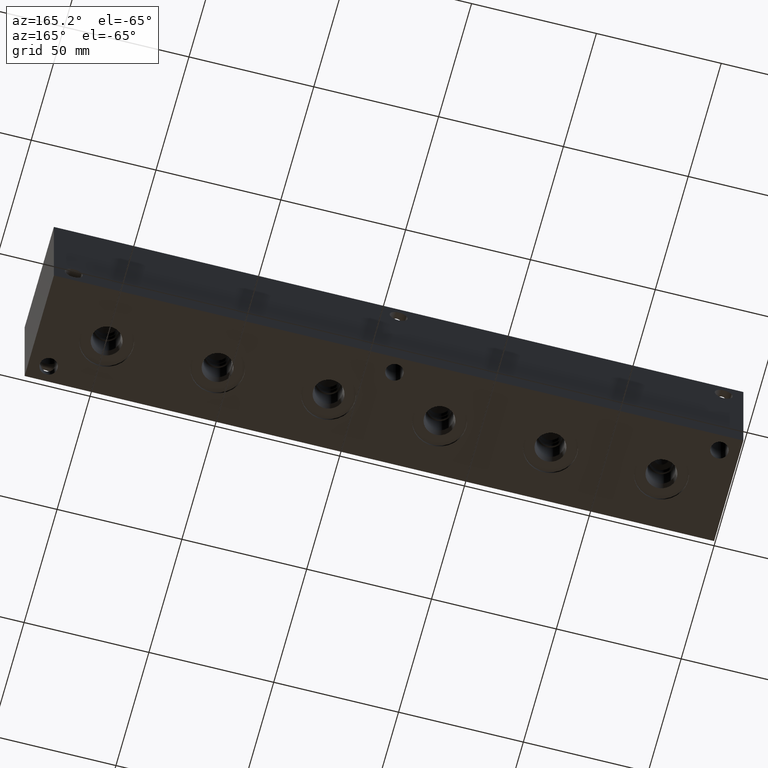
[diagram: clean part render]
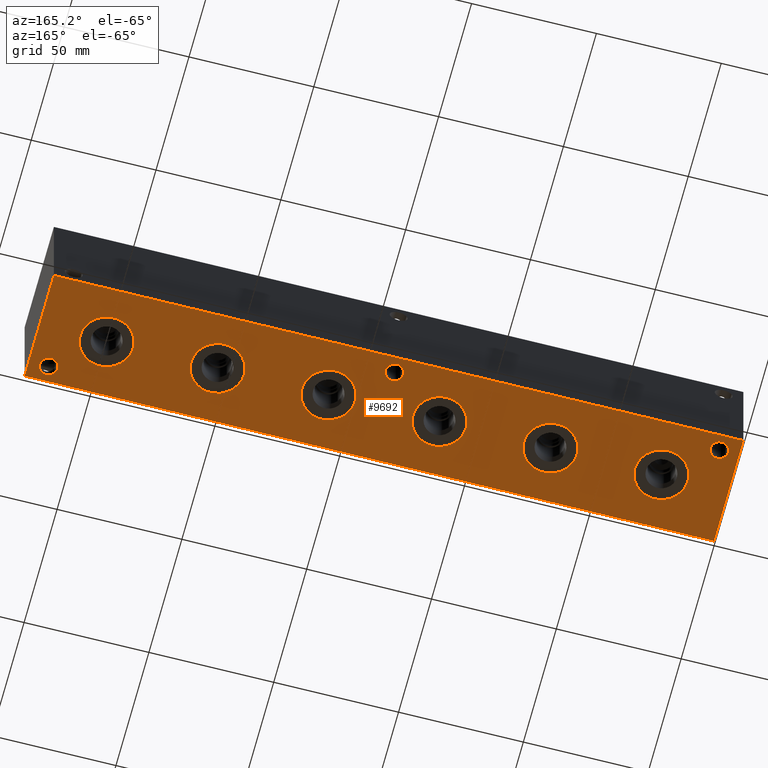
[diagram: same view with one face highlighted and labeled with its STEP entity id]
A machine part, auxiliary view. The second image highlights one B-rep face of the part: STEP entity #9692.
In plain terms, the highlighted planar face has unit normal (0, 0, 1).
Its self-contained STEP definition (entity closure, byte-faithful):
#311=CIRCLE('',#10052,10.6426);
#312=CIRCLE('',#10053,10.6426);
#318=CIRCLE('',#10065,10.6426);
#319=CIRCLE('',#10066,10.6426);
#324=CIRCLE('',#10083,10.6426);
#325=CIRCLE('',#10084,10.6426);
#331=CIRCLE('',#10096,10.6426);
#332=CIRCLE('',#10097,10.6426);
#338=CIRCLE('',#10109,10.6426);
#339=CIRCLE('',#10110,10.6426);
#345=CIRCLE('',#10122,10.6426);
#346=CIRCLE('',#10123,10.6426);
#443=CIRCLE('',#10315,3.5687);
#444=CIRCLE('',#10317,3.5687);
#445=CIRCLE('',#10319,3.5687);
#617=FACE_BOUND('',#2017,.T.);
#618=FACE_BOUND('',#2018,.T.);
#619=FACE_BOUND('',#2019,.T.);
#620=FACE_BOUND('',#2020,.T.);
#621=FACE_BOUND('',#2021,.T.);
#622=FACE_BOUND('',#2022,.T.);
#623=FACE_BOUND('',#2023,.T.);
#624=FACE_BOUND('',#2024,.T.);
#625=FACE_BOUND('',#2025,.T.);
#1421=FACE_OUTER_BOUND('',#2016,.T.);
#2016=EDGE_LOOP('',(#8617,#8618,#8619,#8620));
#2017=EDGE_LOOP('',(#8621,#8622));
#2018=EDGE_LOOP('',(#8623,#8624));
#2019=EDGE_LOOP('',(#8625,#8626));
#2020=EDGE_LOOP('',(#8627,#8628));
#2021=EDGE_LOOP('',(#8629,#8630));
#2022=EDGE_LOOP('',(#8631,#8632));
#2023=EDGE_LOOP('',(#8633));
#2024=EDGE_LOOP('',(#8634));
#2025=EDGE_LOOP('',(#8635));
#2834=LINE('',#16824,#3650);
#2837=LINE('',#16829,#3653);
#2839=LINE('',#16833,#3655);
#2841=LINE('',#16836,#3657);
#3650=VECTOR('',#12814,10.);
#3653=VECTOR('',#12819,10.);
#3655=VECTOR('',#12823,10.);
#3657=VECTOR('',#12827,10.);
#4308=VERTEX_POINT('',#16025);
#4309=VERTEX_POINT('',#16026);
#4317=VERTEX_POINT('',#16050);
#4318=VERTEX_POINT('',#16051);
#4328=VERTEX_POINT('',#16083);
#4329=VERTEX_POINT('',#16084);
#4337=VERTEX_POINT('',#16108);
#4338=VERTEX_POINT('',#16109);
#4346=VERTEX_POINT('',#16133);
#4347=VERTEX_POINT('',#16134);
#4355=VERTEX_POINT('',#16158);
#4356=VERTEX_POINT('',#16159);
#4465=VERTEX_POINT('',#16522);
#4466=VERTEX_POINT('',#16526);
#4467=VERTEX_POINT('',#16530);
#4555=VERTEX_POINT('',#16822);
#4556=VERTEX_POINT('',#16823);
#4557=VERTEX_POINT('',#16828);
#4558=VERTEX_POINT('',#16832);
#5520=EDGE_CURVE('',#4308,#4309,#311,.T.);
#5521=EDGE_CURVE('',#4309,#4308,#312,.T.);
#5532=EDGE_CURVE('',#4317,#4318,#318,.T.);
#5533=EDGE_CURVE('',#4318,#4317,#319,.T.);
#5549=EDGE_CURVE('',#4328,#4329,#324,.T.);
#5550=EDGE_CURVE('',#4329,#4328,#325,.T.);
#5561=EDGE_CURVE('',#4337,#4338,#331,.T.);
#5562=EDGE_CURVE('',#4338,#4337,#332,.T.);
#5573=EDGE_CURVE('',#4346,#4347,#338,.T.);
#5574=EDGE_CURVE('',#4347,#4346,#339,.T.);
#5585=EDGE_CURVE('',#4355,#4356,#345,.T.);
#5586=EDGE_CURVE('',#4356,#4355,#346,.T.);
#5767=EDGE_CURVE('',#4465,#4465,#443,.T.);
#5769=EDGE_CURVE('',#4466,#4466,#444,.T.);
#5771=EDGE_CURVE('',#4467,#4467,#445,.T.);
#5910=EDGE_CURVE('',#4555,#4556,#2834,.T.);
#5913=EDGE_CURVE('',#4557,#4555,#2837,.T.);
#5915=EDGE_CURVE('',#4558,#4557,#2839,.T.);
#5917=EDGE_CURVE('',#4556,#4558,#2841,.T.);
#8617=ORIENTED_EDGE('',*,*,#5917,.F.);
#8618=ORIENTED_EDGE('',*,*,#5910,.F.);
#8619=ORIENTED_EDGE('',*,*,#5913,.F.);
#8620=ORIENTED_EDGE('',*,*,#5915,.F.);
#8621=ORIENTED_EDGE('',*,*,#5520,.T.);
#8622=ORIENTED_EDGE('',*,*,#5521,.T.);
#8623=ORIENTED_EDGE('',*,*,#5532,.T.);
#8624=ORIENTED_EDGE('',*,*,#5533,.T.);
#8625=ORIENTED_EDGE('',*,*,#5549,.T.);
#8626=ORIENTED_EDGE('',*,*,#5550,.T.);
#8627=ORIENTED_EDGE('',*,*,#5561,.T.);
#8628=ORIENTED_EDGE('',*,*,#5562,.T.);
#8629=ORIENTED_EDGE('',*,*,#5573,.T.);
#8630=ORIENTED_EDGE('',*,*,#5574,.T.);
#8631=ORIENTED_EDGE('',*,*,#5585,.T.);
#8632=ORIENTED_EDGE('',*,*,#5586,.T.);
#8633=ORIENTED_EDGE('',*,*,#5767,.T.);
#8634=ORIENTED_EDGE('',*,*,#5769,.T.);
#8635=ORIENTED_EDGE('',*,*,#5771,.T.);
#8885=PLANE('',#10475);
#9692=ADVANCED_FACE('',(#1421,#617,#618,#619,#620,#621,#622,#623,#624,#625),
#8885,.F.);
#10052=AXIS2_PLACEMENT_3D('',#16027,#11845,#11846);
#10053=AXIS2_PLACEMENT_3D('',#16028,#11847,#11848);
#10065=AXIS2_PLACEMENT_3D('',#16052,#11874,#11875);
#10066=AXIS2_PLACEMENT_3D('',#16053,#11876,#11877);
#10083=AXIS2_PLACEMENT_3D('',#16085,#11914,#11915);
#10084=AXIS2_PLACEMENT_3D('',#16086,#11916,#11917);
#10096=AXIS2_PLACEMENT_3D('',#16110,#11943,#11944);
#10097=AXIS2_PLACEMENT_3D('',#16111,#11945,#11946);
#10109=AXIS2_PLACEMENT_3D('',#16135,#11972,#11973);
#10110=AXIS2_PLACEMENT_3D('',#16136,#11974,#11975);
#10122=AXIS2_PLACEMENT_3D('',#16160,#12001,#12002);
#10123=AXIS2_PLACEMENT_3D('',#16161,#12003,#12004);
#10315=AXIS2_PLACEMENT_3D('',#16524,#12449,#12450);
#10317=AXIS2_PLACEMENT_3D('',#16528,#12454,#12455);
#10319=AXIS2_PLACEMENT_3D('',#16532,#12459,#12460);
#10475=AXIS2_PLACEMENT_3D('',#16838,#12830,#12831);
#11845=DIRECTION('center_axis',(0.,0.,1.));
#11846=DIRECTION('ref_axis',(1.,0.,0.));
#11847=DIRECTION('center_axis',(0.,0.,1.));
#11848=DIRECTION('ref_axis',(1.,0.,0.));
#11874=DIRECTION('center_axis',(0.,0.,1.));
#11875=DIRECTION('ref_axis',(1.,0.,0.));
#11876=DIRECTION('center_axis',(0.,0.,1.));
#11877=DIRECTION('ref_axis',(1.,0.,0.));
#11914=DIRECTION('center_axis',(0.,0.,1.));
#11915=DIRECTION('ref_axis',(1.,0.,0.));
#11916=DIRECTION('center_axis',(0.,0.,1.));
#11917=DIRECTION('ref_axis',(1.,0.,0.));
#11943=DIRECTION('center_axis',(0.,0.,1.));
#11944=DIRECTION('ref_axis',(1.,0.,0.));
#11945=DIRECTION('center_axis',(0.,0.,1.));
#11946=DIRECTION('ref_axis',(1.,0.,0.));
#11972=DIRECTION('center_axis',(0.,0.,1.));
#11973=DIRECTION('ref_axis',(1.,0.,0.));
#11974=DIRECTION('center_axis',(0.,0.,1.));
#11975=DIRECTION('ref_axis',(1.,0.,0.));
#12001=DIRECTION('center_axis',(0.,0.,1.));
#12002=DIRECTION('ref_axis',(1.,0.,0.));
#12003=DIRECTION('center_axis',(0.,0.,1.));
#12004=DIRECTION('ref_axis',(1.,0.,0.));
#12449=DIRECTION('center_axis',(0.,0.,1.));
#12450=DIRECTION('ref_axis',(1.,0.,0.));
#12454=DIRECTION('center_axis',(0.,0.,1.));
#12455=DIRECTION('ref_axis',(1.,0.,0.));
#12459=DIRECTION('center_axis',(0.,0.,1.));
#12460=DIRECTION('ref_axis',(1.,0.,0.));
#12814=DIRECTION('',(0.,-1.,0.));
#12819=DIRECTION('',(-1.,0.,0.));
#12823=DIRECTION('',(0.,1.,0.));
#12827=DIRECTION('',(1.,0.,0.));
#12830=DIRECTION('center_axis',(0.,0.,1.));
#12831=DIRECTION('ref_axis',(1.,0.,0.));
#16025=CARTESIAN_POINT('',(215.4174,22.225,0.));
#16026=CARTESIAN_POINT('',(194.1322,22.225,0.));
#16027=CARTESIAN_POINT('Origin',(204.7748,22.225,0.));
#16028=CARTESIAN_POINT('Origin',(204.7748,22.225,0.));
#16050=CARTESIAN_POINT('',(126.5174,22.225,0.));
#16051=CARTESIAN_POINT('',(105.2322,22.225,0.));
#16052=CARTESIAN_POINT('Origin',(115.8748,22.225,0.));
#16053=CARTESIAN_POINT('Origin',(115.8748,22.225,0.));
#16083=CARTESIAN_POINT('',(37.6174,22.225,0.));
#16084=CARTESIAN_POINT('',(16.3322,22.225,0.));
#16085=CARTESIAN_POINT('Origin',(26.9748,22.225,0.));
#16086=CARTESIAN_POINT('Origin',(26.9748,22.225,0.));
#16108=CARTESIAN_POINT('',(82.0674,22.225,0.));
#16109=CARTESIAN_POINT('',(60.7822,22.225,0.));
#16110=CARTESIAN_POINT('Origin',(71.4248,22.225,0.));
#16111=CARTESIAN_POINT('Origin',(71.4248,22.225,0.));
#16133=CARTESIAN_POINT('',(170.9674,22.225,0.));
#16134=CARTESIAN_POINT('',(149.6822,22.225,0.));
#16135=CARTESIAN_POINT('Origin',(160.3248,22.225,0.));
#16136=CARTESIAN_POINT('Origin',(160.3248,22.225,0.));
#16158=CARTESIAN_POINT('',(259.8674,22.225,0.));
#16159=CARTESIAN_POINT('',(238.5822,22.225,0.));
#16160=CARTESIAN_POINT('Origin',(249.2248,22.225,0.));
#16161=CARTESIAN_POINT('Origin',(249.2248,22.225,0.));
#16522=CARTESIAN_POINT('',(264.7061,6.35,0.));
#16524=CARTESIAN_POINT('Origin',(268.2748,6.35,0.));
#16526=CARTESIAN_POINT('',(4.3561,38.1,0.));
#16528=CARTESIAN_POINT('Origin',(7.9248,38.1,0.));
#16530=CARTESIAN_POINT('',(134.5565,38.1,0.));
#16532=CARTESIAN_POINT('Origin',(138.1252,38.1,0.));
#16822=CARTESIAN_POINT('',(0.,44.45,0.));
#16823=CARTESIAN_POINT('',(0.,0.,0.));
#16824=CARTESIAN_POINT('',(0.,44.45,0.));
#16828=CARTESIAN_POINT('',(276.225,44.45,0.));
#16829=CARTESIAN_POINT('',(276.225,44.45,0.));
#16832=CARTESIAN_POINT('',(276.225,0.,0.));
#16833=CARTESIAN_POINT('',(276.225,0.,0.));
#16836=CARTESIAN_POINT('',(0.,0.,0.));
#16838=CARTESIAN_POINT('Origin',(138.1125,22.225,0.));